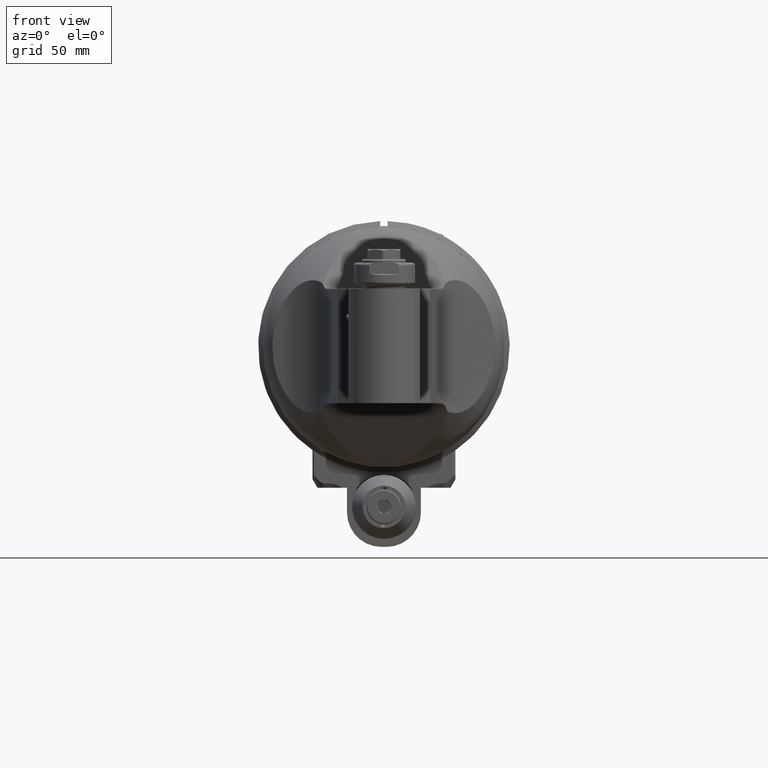
[diagram: clean part render]
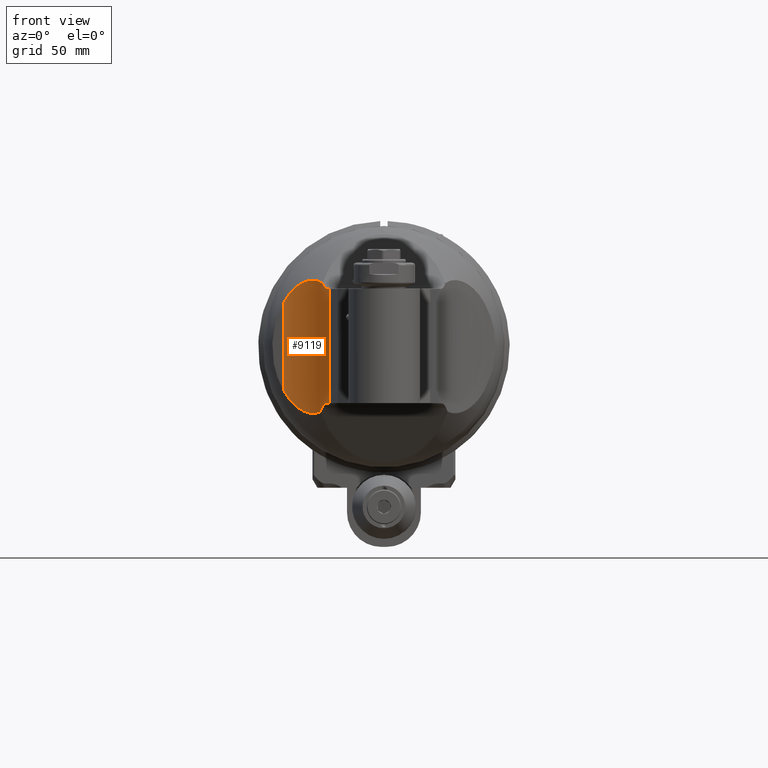
[diagram: same view with one face highlighted and labeled with its STEP entity id]
A machine part, front view. The second image highlights one B-rep face of the part: STEP entity #9119.
In plain terms, the highlighted cylindrical surface (partial cylindrical patch) has radius 26 mm, axis along (-0, 0, -1).
Its self-contained STEP definition (entity closure, byte-faithful):
#40=ELLIPSE('',#10037,78.9687927245387,46.6795429101251);
#1038=FACE_OUTER_BOUND('',#1625,.T.);
#1625=EDGE_LOOP('',(#7962,#7963,#7964,#7965,#7966,#7967,#7968,#7969,#7970,
#7971));
#2105=CIRCLE('',#10010,26.);
#2108=CIRCLE('',#10020,26.);
#2116=CIRCLE('',#10036,61.1215133783264);
#2357=B_SPLINE_CURVE_WITH_KNOTS('',3,(#45908,#45909,#45910,#45911,#45912,
#45913,#45914,#45915),.UNSPECIFIED.,.F.,.F.,(4,2,2,4),(-1.01926799667052,
-0.95601071410436,-0.787581854620934,-0.619152995137509),.UNSPECIFIED.);
#2362=B_SPLINE_CURVE_WITH_KNOTS('',3,(#46043,#46044,#46045,#46046,#46047,
#46048,#46049,#46050),.UNSPECIFIED.,.F.,.F.,(4,2,2,4),(-0.634143604519555,
-0.468183361072118,-0.30222311762468,-0.238269728376609),.UNSPECIFIED.);
#2363=B_SPLINE_CURVE_WITH_KNOTS('',3,(#46054,#46055,#46056,#46057,#46058,
#46059,#46060,#46061,#46062,#46063,#46064,#46065,#46066,#46067,#46068,#46069),
 .UNSPECIFIED.,.F.,.F.,(4,2,2,2,2,2,2,4),(-4.1196821726461,-3.6911833808013,
-3.39155951841451,-3.09193565602771,-2.73432247619377,-2.37670929635983,
-1.78253197226987,-1.7550047310812),.UNSPECIFIED.);
#2364=B_SPLINE_CURVE_WITH_KNOTS('',3,(#46073,#46074,#46075,#46076,#46077,
#46078,#46079,#46080,#46081,#46082,#46083,#46084,#46085,#46086,#46087,#46088),
 .UNSPECIFIED.,.F.,.F.,(4,2,2,2,2,2,2,4),(1.75500473105324,1.78253197226987,
2.37670929635983,2.73432247619377,3.09193565602771,3.39155951841451,3.6911833808013,
3.95042095255802),.UNSPECIFIED.);
#2866=LINE('',#46040,#3505);
#2867=LINE('',#46071,#3506);
#3505=VECTOR('',#12248,46.5);
#3506=VECTOR('',#12253,35.24839661005);
#4310=VERTEX_POINT('',#45882);
#4320=VERTEX_POINT('',#45903);
#4321=VERTEX_POINT('',#45907);
#4332=VERTEX_POINT('',#45990);
#4333=VERTEX_POINT('',#45992);
#4350=VERTEX_POINT('',#46042);
#4351=VERTEX_POINT('',#46051);
#4352=VERTEX_POINT('',#46053);
#4353=VERTEX_POINT('',#46070);
#4354=VERTEX_POINT('',#46072);
#5553=EDGE_CURVE('',#4320,#4310,#2105,.T.);
#5554=EDGE_CURVE('',#4321,#4310,#2357,.T.);
#5571=EDGE_CURVE('',#4332,#4333,#2108,.T.);
#5595=EDGE_CURVE('',#4320,#4333,#2866,.T.);
#5596=EDGE_CURVE('',#4332,#4350,#2362,.T.);
#5597=EDGE_CURVE('',#4350,#4351,#2116,.T.);
#5598=EDGE_CURVE('',#4351,#4352,#2363,.T.);
#5599=EDGE_CURVE('',#4352,#4353,#2867,.T.);
#5600=EDGE_CURVE('',#4353,#4354,#2364,.T.);
#5601=EDGE_CURVE('',#4354,#4321,#40,.T.);
#7962=ORIENTED_EDGE('',*,*,#5595,.T.);
#7963=ORIENTED_EDGE('',*,*,#5571,.F.);
#7964=ORIENTED_EDGE('',*,*,#5596,.T.);
#7965=ORIENTED_EDGE('',*,*,#5597,.T.);
#7966=ORIENTED_EDGE('',*,*,#5598,.T.);
#7967=ORIENTED_EDGE('',*,*,#5599,.T.);
#7968=ORIENTED_EDGE('',*,*,#5600,.T.);
#7969=ORIENTED_EDGE('',*,*,#5601,.T.);
#7970=ORIENTED_EDGE('',*,*,#5554,.T.);
#7971=ORIENTED_EDGE('',*,*,#5553,.F.);
#8668=CYLINDRICAL_SURFACE('',#10035,26.);
#9119=ADVANCED_FACE('',(#1038),#8668,.F.);
#10010=AXIS2_PLACEMENT_3D('',#45905,#12173,#12174);
#10020=AXIS2_PLACEMENT_3D('',#45993,#12202,#12203);
#10035=AXIS2_PLACEMENT_3D('',#46041,#12249,#12250);
#10036=AXIS2_PLACEMENT_3D('',#46052,#12251,#12252);
#10037=AXIS2_PLACEMENT_3D('',#46089,#12254,#12255);
#12173=DIRECTION('center_axis',(0.,-1.,0.));
#12174=DIRECTION('ref_axis',(-0.173648177667193,0.,0.984807753012162));
#12202=DIRECTION('center_axis',(0.,1.,0.));
#12203=DIRECTION('ref_axis',(-0.350798944470403,0.,0.936450799860009));
#12248=DIRECTION('',(0.,-1.,0.));
#12249=DIRECTION('center_axis',(0.,1.,0.));
#12250=DIRECTION('ref_axis',(1.,0.,0.));
#12251=DIRECTION('center_axis',(0.819155309111649,-0.573571773392739,-1.79250509594205E-5));
#12252=DIRECTION('ref_axis',(-0.17678701998738,-0.252510818952798,0.951306804283334));
#12253=DIRECTION('',(-2.503240016924E-12,1.,-7.638329096578E-12));
#12254=DIRECTION('center_axis',(0.819186844003443,0.573526708428818,-0.000171261448242765));
#12255=DIRECTION('ref_axis',(0.540125022672275,-0.771578479446381,-0.336052986801911));
#45882=CARTESIAN_POINT('',(54.73216465252,23.,-23.50722286254));
#45903=CARTESIAN_POINT('',(60.03829212761,23.,-21.97603174258));
#45905=CARTESIAN_POINT('Origin',(64.55314474696,23.,-47.5810333209));
#45907=CARTESIAN_POINT('',(51.45555647536,24.7056942546,-25.12099811461));
#45908=CARTESIAN_POINT('Ctrl Pts',(51.4555564753612,24.7056942545999,-25.1209981146124));
#45909=CARTESIAN_POINT('Ctrl Pts',(51.5753408439917,24.5346244473009,-25.0511457600953));
#45910=CARTESIAN_POINT('Ctrl Pts',(51.7059494581249,24.3768949906602,-24.9763026179841));
#45911=CARTESIAN_POINT('Ctrl Pts',(52.2037708472152,23.8565480079489,-24.6973038563181));
#45912=CARTESIAN_POINT('Ctrl Pts',(52.6603225400345,23.5351211073212,-24.4537188362212));
#45913=CARTESIAN_POINT('Ctrl Pts',(53.6643756978693,23.1067054262353,-23.9643738640769));
#45914=CARTESIAN_POINT('Ctrl Pts',(54.2123281859922,23.,-23.7192916415636));
#45915=CARTESIAN_POINT('Ctrl Pts',(54.73216465252,23.,-23.5072228625489));
#45990=CARTESIAN_POINT('',(55.43237219073,-23.5,-23.23331252454));
#45992=CARTESIAN_POINT('',(60.03829212761,-23.5,-21.97603174258));
#45993=CARTESIAN_POINT('Origin',(64.55314474696,-23.5,-47.5810333209));
#46040=CARTESIAN_POINT('',(60.03829212761,23.,-21.97603174258));
#46041=CARTESIAN_POINT('Origin',(64.55314474696,0.,-47.5810333209));
#46042=CARTESIAN_POINT('',(52.15576401357,-25.2056942546,-24.72704130743));
#46043=CARTESIAN_POINT('Ctrl Pts',(55.43237219073,-23.5,-23.2333125245396));
#46044=CARTESIAN_POINT('Ctrl Pts',(54.9143268483256,-23.5,-23.4273747852909));
#46045=CARTESIAN_POINT('Ctrl Pts',(54.3678108661031,-23.6060548904747,-23.6527927473859));
#46046=CARTESIAN_POINT('Ctrl Pts',(53.3663020266744,-24.0319381493228,-24.1043156376075));
#46047=CARTESIAN_POINT('Ctrl Pts',(52.9108917322444,-24.3515229478473,-24.3297240020591));
#46048=CARTESIAN_POINT('Ctrl Pts',(52.411048502382,-24.8709674705563,-24.5898596612022));
#46049=CARTESIAN_POINT('Ctrl Pts',(52.2777133018516,-25.0315326216183,-24.6608886739683));
#46050=CARTESIAN_POINT('Ctrl Pts',(52.155764013572,-25.2056942545987,-24.7270413074372));
#46051=CARTESIAN_POINT('',(51.76423686831,-25.76485296668,-24.94381098088));
#46052=CARTESIAN_POINT('Origin',(62.569727075584,-10.3310095678844,-83.0891225457783));
#46053=CARTESIAN_POINT('',(39.43907326322,-17.62419830511,-40.85173814904));
#46054=CARTESIAN_POINT('Ctrl Pts',(51.7642368683103,-25.764852966678,-24.943810980882));
#46055=CARTESIAN_POINT('Ctrl Pts',(50.5563175668249,-26.2814142669372,-25.6262254767731));
#46056=CARTESIAN_POINT('Ctrl Pts',(49.3233002074889,-26.6813641345671,-26.4556150781762));
#46057=CARTESIAN_POINT('Ctrl Pts',(47.3527718095707,-27.0206715689457,-28.055709602424));
#46058=CARTESIAN_POINT('Ctrl Pts',(46.5754988807068,-27.0631655307252,-28.769610398774));
#46059=CARTESIAN_POINT('Ctrl Pts',(45.1408364903172,-26.928828024518,-30.2539541892921));
#46060=CARTESIAN_POINT('Ctrl Pts',(44.4833891250785,-26.7515201873074,-31.0242980645363));
#46061=CARTESIAN_POINT('Ctrl Pts',(43.2048615199485,-26.1431500897146,-32.6960679135348));
#46062=CARTESIAN_POINT('Ctrl Pts',(42.546578790386,-25.6262824137681,-33.6912935538658));
#46063=CARTESIAN_POINT('Ctrl Pts',(41.4504452654249,-24.2857621006101,-35.6027586369876));
#46064=CARTESIAN_POINT('Ctrl Pts',(41.0087793176665,-23.4640109036862,-36.5181412902263));
#46065=CARTESIAN_POINT('Ctrl Pts',(40.1128481386325,-21.2432134325854,-38.5992416820879));
#46066=CARTESIAN_POINT('Ctrl Pts',(39.7430630256033,-19.6305258381362,-39.7397040921012));
#46067=CARTESIAN_POINT('Ctrl Pts',(39.4631801554316,-17.7882881645321,-40.7622445585138));
#46068=CARTESIAN_POINT('Ctrl Pts',(39.4510158797674,-17.7063995062127,-40.8071676973356));
#46069=CARTESIAN_POINT('Ctrl Pts',(39.4390732632355,-17.6241983050934,-40.8517381490135));
#46070=CARTESIAN_POINT('',(39.43907326313,17.62419830494,-40.85173814931));
#46071=CARTESIAN_POINT('',(39.43907326322,-17.62419830511,-40.85173814904));
#46072=CARTESIAN_POINT('',(50.32663557924,26.31796038216,-25.81853261668));
#46073=CARTESIAN_POINT('Ctrl Pts',(39.4390732631991,17.6241983048429,-40.8517381491494));
#46074=CARTESIAN_POINT('Ctrl Pts',(39.4510158797427,17.7063995060463,-40.8071676974269));
#46075=CARTESIAN_POINT('Ctrl Pts',(39.463180155419,17.7882881644492,-40.7622445585598));
#46076=CARTESIAN_POINT('Ctrl Pts',(39.7430630256033,19.6305258381362,-39.7397040921012));
#46077=CARTESIAN_POINT('Ctrl Pts',(40.1128481386325,21.2432134325854,-38.5992416820879));
#46078=CARTESIAN_POINT('Ctrl Pts',(41.0087793176665,23.4640109036862,-36.5181412902263));
#46079=CARTESIAN_POINT('Ctrl Pts',(41.4504452654249,24.2857621006101,-35.6027586369876));
#46080=CARTESIAN_POINT('Ctrl Pts',(42.546578790386,25.6262824137681,-33.6912935538658));
#46081=CARTESIAN_POINT('Ctrl Pts',(43.2048615199485,26.1431500897146,-32.6960679135348));
#46082=CARTESIAN_POINT('Ctrl Pts',(44.4833891250785,26.7515201873074,-31.0242980645363));
#46083=CARTESIAN_POINT('Ctrl Pts',(45.1408364903172,26.928828024518,-30.2539541892921));
#46084=CARTESIAN_POINT('Ctrl Pts',(46.5754988807068,27.0631655307251,-28.769610398774));
#46085=CARTESIAN_POINT('Ctrl Pts',(47.3527718095707,27.0206715689457,-28.055709602424));
#46086=CARTESIAN_POINT('Ctrl Pts',(48.8652262292773,26.7602403925631,-26.827577068174));
#46087=CARTESIAN_POINT('Ctrl Pts',(49.5931269071164,26.5670459568292,-26.2980394523418));
#46088=CARTESIAN_POINT('Ctrl Pts',(50.3266355792421,26.3179603821512,-25.8185326166878));
#46089=CARTESIAN_POINT('Origin',(80.1123565418378,-16.2399727042879,-72.7673875551931));